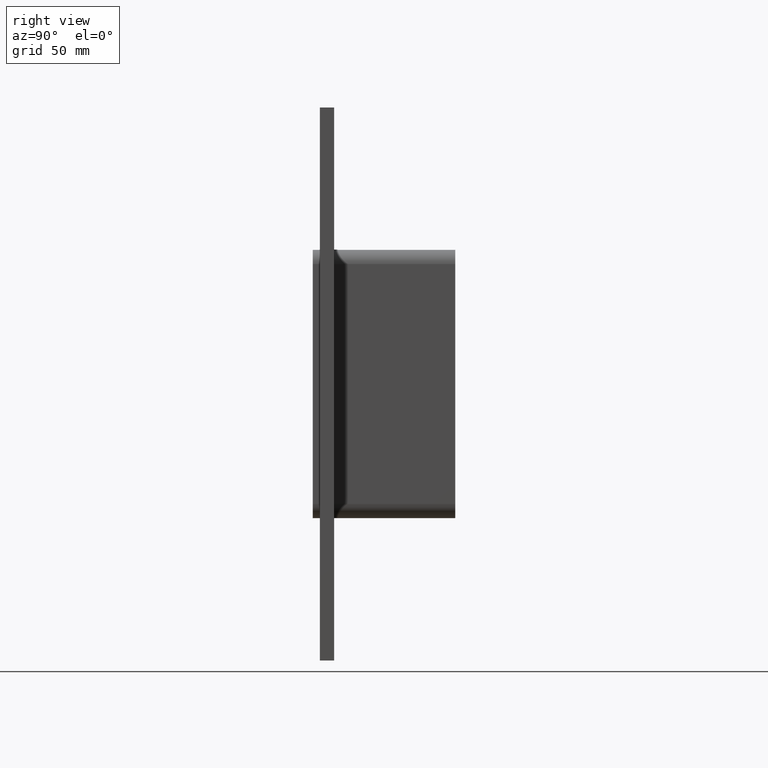
[diagram: clean part render]
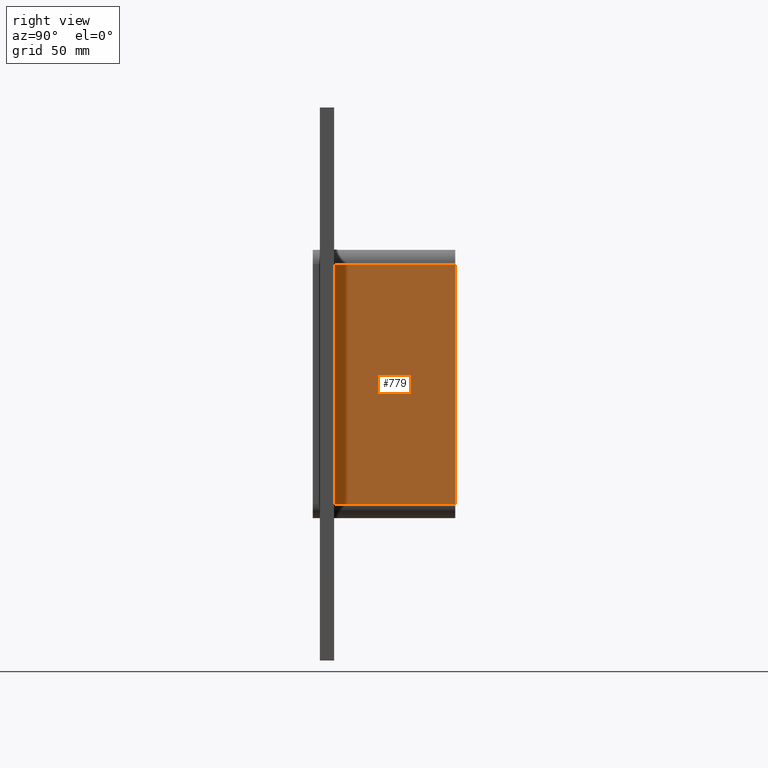
[diagram: same view with one face highlighted and labeled with its STEP entity id]
A machine part, right view. The second image highlights one B-rep face of the part: STEP entity #779.
In plain terms, the highlighted planar face has unit normal (1, 0, 0).
Its self-contained STEP definition (entity closure, byte-faithful):
#374=CARTESIAN_POINT('',(36.250000000000007,6.000000000000001,-50.500000000000007));
#375=VERTEX_POINT('',#374);
#383=CARTESIAN_POINT('',(36.250000000000007,6.000000000000001,50.500000000000007));
#384=VERTEX_POINT('',#383);
#385=CARTESIAN_POINT('',(36.250000000000007,6.000000000000001,50.500000000000007));
#386=DIRECTION('',(0.0,0.0,-1.0));
#387=VECTOR('',#386,101.00000000000003);
#388=LINE('',#385,#387);
#389=EDGE_CURVE('',#384,#375,#388,.T.);
#706=CARTESIAN_POINT('',(36.250000000000007,57.0,50.500000000000007));
#707=VERTEX_POINT('',#706);
#708=CARTESIAN_POINT('',(36.250000000000007,6.000000000000001,50.500000000000007));
#709=DIRECTION('',(0.0,1.0,0.0));
#710=VECTOR('',#709,51.0);
#711=LINE('',#708,#710);
#712=EDGE_CURVE('',#384,#707,#711,.T.);
#756=CARTESIAN_POINT('',(36.250000000000007,0.0,56.5));
#757=DIRECTION('',(1.0,0.0,0.0));
#758=DIRECTION('',(0.0,0.0,-1.0));
#759=AXIS2_PLACEMENT_3D('',#756,#757,#758);
#760=PLANE('',#759);
#761=ORIENTED_EDGE('',*,*,#389,.T.);
#762=CARTESIAN_POINT('',(36.250000000000007,57.0,-50.500000000000007));
#763=VERTEX_POINT('',#762);
#764=CARTESIAN_POINT('',(36.250000000000007,57.0,-50.500000000000007));
#765=DIRECTION('',(0.0,-1.0,0.0));
#766=VECTOR('',#765,51.0);
#767=LINE('',#764,#766);
#768=EDGE_CURVE('',#763,#375,#767,.T.);
#769=ORIENTED_EDGE('',*,*,#768,.F.);
#770=CARTESIAN_POINT('',(36.250000000000007,57.0,50.5));
#771=DIRECTION('',(0.0,0.0,-1.0));
#772=VECTOR('',#771,101.00000000000001);
#773=LINE('',#770,#772);
#774=EDGE_CURVE('',#707,#763,#773,.T.);
#775=ORIENTED_EDGE('',*,*,#774,.F.);
#776=ORIENTED_EDGE('',*,*,#712,.F.);
#777=EDGE_LOOP('',(#761,#769,#775,#776));
#778=FACE_OUTER_BOUND('',#777,.T.);
#779=ADVANCED_FACE('',(#778),#760,.T.);